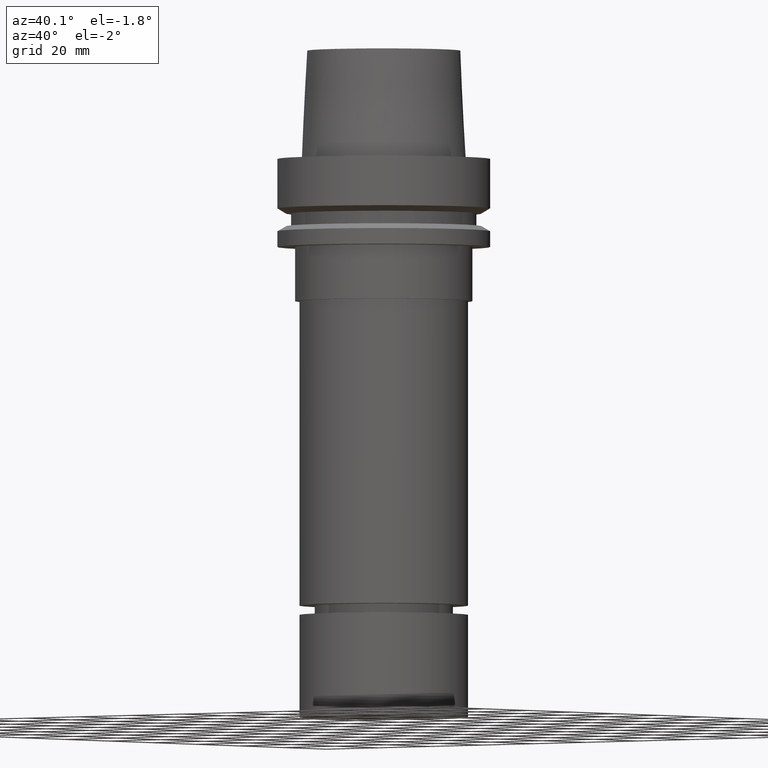
[diagram: clean part render]
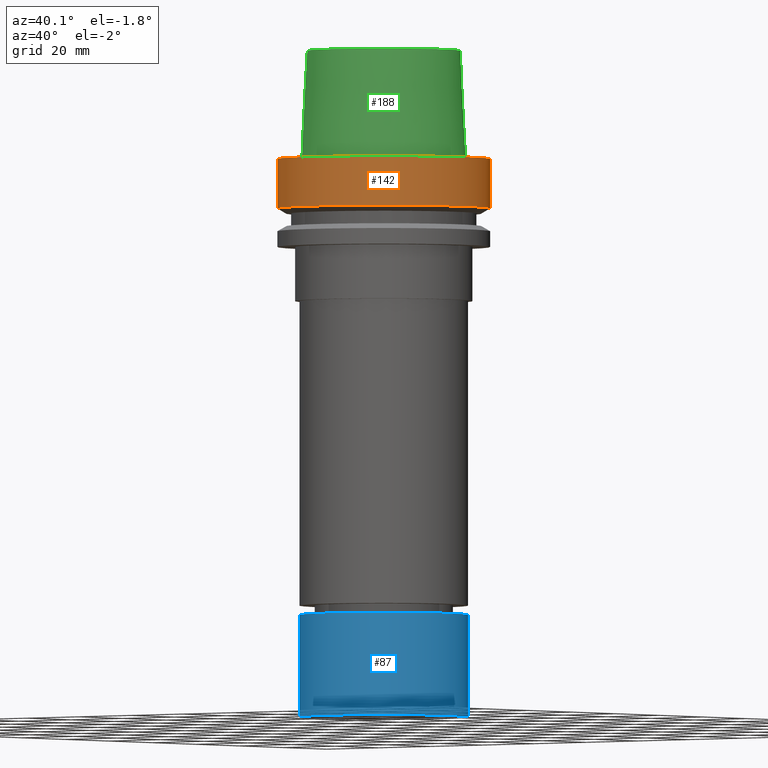
[diagram: same view with three faces highlighted in distinct colors, each labeled with its STEP entity id]
A machine part, auxiliary view with three faces highlighted in distinct colors.
Their STEP definitions:

[orange] entity #142 — the highlighted cylindrical surface (bore or boss wall) has radius 31.5 mm, axis along (-0, -0, 1).
#142=ADVANCED_FACE('Unnamed[1]',(#311,#312),#313,.T.);
#172=EDGE_CURVE('Unnamed[1]',#359,#359,#360,.T.);
#194=EDGE_CURVE('Unnamed[1]',#392,#392,#393,.T.);
#311=FACE_BOUND('',#526,.T.);
#312=FACE_BOUND('',#527,.T.);
#313=CYLINDRICAL_SURFACE('',#528,31.5);
#359=VERTEX_POINT('',#586);
#360=CIRCLE('',#587,31.5000000000001);
#392=VERTEX_POINT('',#627);
#393=CIRCLE('',#628,31.5);
#526=EDGE_LOOP('',(#737));
#527=EDGE_LOOP('',(#738));
#528=AXIS2_PLACEMENT_3D('',#739,#740,#741);
#586=CARTESIAN_POINT('',(-3.88267476788467E-031,31.5000000000001,3.85763741731417E-015));
#587=AXIS2_PLACEMENT_3D('',#792,#793,#794);
#627=CARTESIAN_POINT('',(8.95369947681261E-016,31.5,-14.6225009252407));
#628=AXIS2_PLACEMENT_3D('',#826,#827,#828);
#737=ORIENTED_EDGE('',*,*,#172,.F.);
#738=ORIENTED_EDGE('',*,*,#194,.T.);
#739=CARTESIAN_POINT('',(4.47684973840631E-016,8.95369947681262E-016,-7.31125046262035));
#740=DIRECTION('',(-6.12323399573677E-017,-1.22464679914735E-016,1.0));
#741=DIRECTION('',(-1.23259516440783E-032,1.0,1.22464679914735E-016));
#792=CARTESIAN_POINT('',(0.0,0.0,0.0));
#793=DIRECTION('',(-6.12323399573677E-017,-1.22464679914735E-016,1.0));
#794=DIRECTION('',(-1.23259516440783E-032,1.0,1.22464679914735E-016));
#826=CARTESIAN_POINT('',(8.95369947681262E-016,1.79073989536252E-015,-14.6225009252407));
#827=DIRECTION('',(-6.12323399573677E-017,-1.22464679914735E-016,1.0));
#828=DIRECTION('',(-1.23259516440783E-032,1.0,1.22464679914735E-016));

[blue] entity #87 — the highlighted cylindrical surface (bore or boss wall) has radius 25 mm, axis along (0, 0, -1).
#87=ADVANCED_FACE('Unnamed[1]',(#227,#228),#229,.T.);
#177=EDGE_CURVE('Unnamed[1]',#365,#365,#366,.T.);
#192=EDGE_CURVE('Unnamed[1]',#389,#389,#390,.T.);
#227=FACE_BOUND('',#422,.T.);
#228=FACE_BOUND('',#423,.T.);
#229=CYLINDRICAL_SURFACE('',#424,25.0);
#365=VERTEX_POINT('',#593);
#366=CIRCLE('',#594,25.0);
#389=VERTEX_POINT('',#623);
#390=CIRCLE('',#624,25.0);
#422=EDGE_LOOP('',(#643));
#423=EDGE_LOOP('',(#644));
#424=AXIS2_PLACEMENT_3D('',#645,#646,#647);
#593=CARTESIAN_POINT('',(1.01033360929657E-014,25.0,-165.0));
#594=AXIS2_PLACEMENT_3D('',#796,#797,#798);
#623=CARTESIAN_POINT('',(8.25411942625316E-015,25.0,-134.8));
#624=AXIS2_PLACEMENT_3D('',#823,#824,#825);
#643=ORIENTED_EDGE('',*,*,#177,.F.);
#644=ORIENTED_EDGE('',*,*,#192,.T.);
#645=CARTESIAN_POINT('',(9.17872775960941E-015,1.83574555192188E-014,-149.9));
#646=DIRECTION('',(6.12323399573677E-017,1.22464679914735E-016,-1.0));
#647=DIRECTION('',(-1.23259516440783E-032,1.0,1.22464679914735E-016));
#796=CARTESIAN_POINT('',(1.01033360929657E-014,2.02066721859313E-014,-165.0));
#797=DIRECTION('',(6.12323399573677E-017,1.22464679914735E-016,-1.0));
#798=DIRECTION('',(-1.23259516440783E-032,1.0,1.22464679914735E-016));
#823=CARTESIAN_POINT('',(8.25411942625316E-015,1.65082388525063E-014,-134.8));
#824=DIRECTION('',(6.12323399573677E-017,1.22464679914735E-016,-1.0));
#825=DIRECTION('',(-1.23259516440783E-032,1.0,1.22464679914735E-016));

[green] entity #188 — the highlighted conical surface has half-angle 2.862 deg.
#79=EDGE_CURVE('Unnamed[1]',#215,#215,#216,.T.);
#119=EDGE_CURVE('Unnamed[1]',#277,#277,#278,.T.);
#188=ADVANCED_FACE('Unnamed[1]',(#382,#383),#384,.T.);
#215=VERTEX_POINT('',#407);
#216=CIRCLE('',#408,24.315);
#277=VERTEX_POINT('',#483);
#278=CIRCLE('',#484,22.715);
#382=FACE_BOUND('',#614,.T.);
#383=FACE_BOUND('',#615,.T.);
#384=CONICAL_SURFACE('',#616,23.515,0.0499583957219433);
#407=CARTESIAN_POINT('',(-2.99705514225764E-031,24.315,2.97772869212679E-015));
#408=AXIS2_PLACEMENT_3D('',#630,#631,#632);
#483=CARTESIAN_POINT('',(-1.95943487863576E-015,22.715,32.0));
#484=AXIS2_PLACEMENT_3D('',#699,#700,#701);
#614=EDGE_LOOP('',(#815));
#615=EDGE_LOOP('',(#816));
#616=AXIS2_PLACEMENT_3D('',#817,#818,#819);
#630=CARTESIAN_POINT('',(0.0,0.0,0.0));
#631=DIRECTION('',(-6.12323399573677E-017,-1.22464679914735E-016,1.0));
#632=DIRECTION('',(-1.23259516440783E-032,1.0,1.22464679914735E-016));
#699=CARTESIAN_POINT('',(-1.95943487863576E-015,-3.91886975727153E-015,32.0));
#700=DIRECTION('',(-6.12323399573676E-017,-1.22464679914735E-016,1.0));
#701=DIRECTION('',(-1.23259516440783E-032,1.0,1.22464679914735E-016));
#815=ORIENTED_EDGE('',*,*,#119,.F.);
#816=ORIENTED_EDGE('',*,*,#79,.T.);
#817=CARTESIAN_POINT('',(-9.79717439317882E-016,-1.95943487863576E-015,16.0));
#818=DIRECTION('',(6.12323399573677E-017,1.22464679914735E-016,-1.0));
#819=DIRECTION('',(-1.23259516440783E-032,1.0,1.22464679914735E-016));